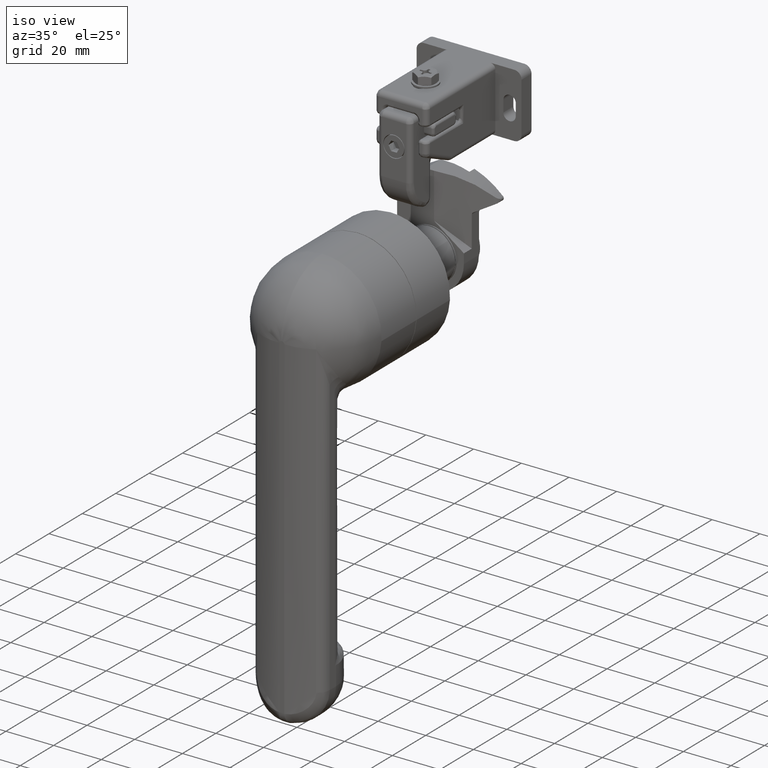
[diagram: clean part render]
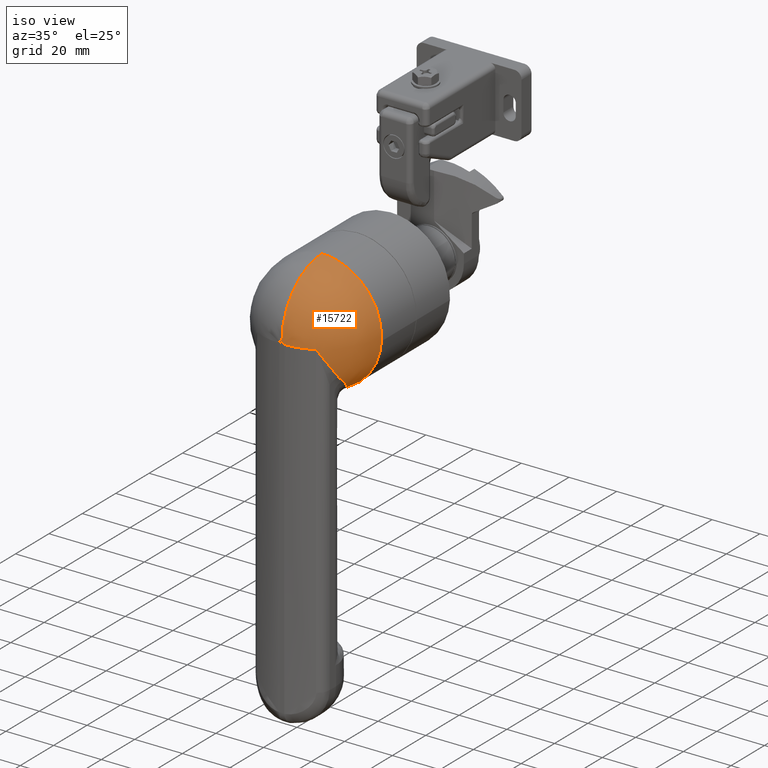
[diagram: same view with one face highlighted and labeled with its STEP entity id]
A machine part, iso view. The second image highlights one B-rep face of the part: STEP entity #15722.
In plain terms, the highlighted face is a freeform B-spline surface patch.
Its self-contained STEP definition (entity closure, byte-faithful):
#13758=CARTESIAN_POINT('',(12.368421052659739,-86.136674354177700,0.0));
#13759=VERTEX_POINT('',#13758);
#14684=CARTESIAN_POINT('',(16.691412799020451,-78.848165956074013,-12.075948117318720));
#14685=VERTEX_POINT('',#14684);
#14686=CARTESIAN_POINT('',(12.368421052659739,-86.136674354177700,0.0));
#14687=CARTESIAN_POINT('',(12.387903603202259,-86.126195608371319,-0.032028102477269));
#14688=CARTESIAN_POINT('',(12.407615682408119,-86.115490653580693,-0.064501577772685));
#14689=CARTESIAN_POINT('',(12.446859998097549,-86.093968124939153,-0.129283595502242));
#14690=CARTESIAN_POINT('',(12.505580352903520,-86.061450952670626,-0.226415839607069));
#14691=CARTESIAN_POINT('',(12.641565911307380,-85.983949842044169,-0.452778047456445));
#14692=CARTESIAN_POINT('',(12.756341729171501,-85.914750062908013,-0.646343067762968));
#14693=CARTESIAN_POINT('',(12.983460402625081,-85.772707933445346,-1.032912685323779));
#14694=CARTESIAN_POINT('',(13.131629731309189,-85.673157302148169,-1.289878549229909));
#14695=CARTESIAN_POINT('',(13.565935931567870,-85.360313980973586,-2.058953912359514));
#14696=CARTESIAN_POINT('',(13.841886134225501,-85.132843585568210,-2.569240320859385));
#14697=CARTESIAN_POINT('',(14.363755270688920,-84.641757972048978,-3.587194166868598));
#14698=CARTESIAN_POINT('',(14.609679906107649,-84.378142757967950,-4.094858758040878));
#14699=CARTESIAN_POINT('',(15.068095789755329,-83.815998628434002,-5.109868734369498));
#14700=CARTESIAN_POINT('',(15.280597077244940,-83.517470368280485,-5.617209423776683));
#14701=CARTESIAN_POINT('',(15.571135873087741,-83.044079668509156,-6.379834882521839));
#14702=CARTESIAN_POINT('',(15.663355454554360,-82.881799540438820,-6.634616730930951));
#14703=CARTESIAN_POINT('',(15.836360627809890,-82.551621897035531,-7.140761346578716));
#14704=CARTESIAN_POINT('',(15.917346211883530,-82.383429218786759,-7.392616066442840));
#14705=CARTESIAN_POINT('',(16.143315490370490,-81.870059262111596,-8.144995791472377));
#14706=CARTESIAN_POINT('',(16.271344774024350,-81.516100120233531,-8.642337355183784));
#14707=CARTESIAN_POINT('',(16.479148108147221,-80.787241473676445,-9.630951633321672));
#14708=CARTESIAN_POINT('',(16.558937112682241,-80.412337757744069,-10.122218332320800));
#14709=CARTESIAN_POINT('',(16.666027413815680,-79.643793726513081,-11.101132095573680));
#14710=CARTESIAN_POINT('',(16.693354633436400,-79.250148824724235,-11.588770734553650));
#14711=CARTESIAN_POINT('',(16.691412799020451,-78.848165956074013,-12.075948117318720));
#14712=B_SPLINE_CURVE_WITH_KNOTS('',3,(#14686,#14687,#14688,#14689,#14690,#14691,#14692,#14693,#14694,#14695,#14696,#14697,#14698,#14699,#14700,#14701,#14702,#14703,#14704,#14705,#14706,#14707,#14708,#14709,#14710,#14711),.UNSPECIFIED.,.F.,.U.,(4,2,1,1,2,2,2,2,2,2,2,2,2,4),(0.0,0.007812500000000,0.015625000000001,0.031250000000000,0.062500000000000,0.125000000000000,0.249999999999999,0.374999999999999,0.499999999999998,0.562499999999998,0.624999999999998,0.749999999999999,0.874999999999999,1.0),.UNSPECIFIED.);
#14713=EDGE_CURVE('',#13759,#14685,#14712,.T.);
#14780=CARTESIAN_POINT('',(16.681870195211701,-76.436960092752187,-14.495188320257300));
#14781=VERTEX_POINT('',#14780);
#14795=CARTESIAN_POINT('',(16.691412799020451,-78.848165956074013,-12.075948117318720));
#14796=CARTESIAN_POINT('',(16.689654876300320,-78.484255000250187,-12.516984790384230));
#14797=CARTESIAN_POINT('',(16.687975704293152,-78.101319844358287,-12.939060753716740));
#14798=CARTESIAN_POINT('',(16.684791227888081,-77.297658286550174,-13.745547625570120));
#14799=CARTESIAN_POINT('',(16.683285689166940,-76.876933296368335,-14.129959940212659));
#14800=CARTESIAN_POINT('',(16.681870195211701,-76.436960092752187,-14.495188320257300));
#14801=B_SPLINE_CURVE_WITH_KNOTS('',3,(#14795,#14796,#14797,#14798,#14799,#14800),.UNSPECIFIED.,.F.,.U.,(4,2,4),(0.0,0.500000000000000,1.0),.UNSPECIFIED.);
#14802=EDGE_CURVE('',#14685,#14781,#14801,.T.);
#14897=CARTESIAN_POINT('',(13.891201962038741,-70.268496706545804,-20.077515458229449));
#14898=VERTEX_POINT('',#14897);
#14912=CARTESIAN_POINT('',(16.681870195211701,-76.436960092752187,-14.495188320257300));
#14913=CARTESIAN_POINT('',(16.680940050542080,-76.147846367747135,-14.735185975942709));
#14914=CARTESIAN_POINT('',(16.664864119065999,-75.861680810625998,-14.975064030838441));
#14915=CARTESIAN_POINT('',(16.603686744759049,-75.294809362467262,-15.454369499824480));
#14916=CARTESIAN_POINT('',(16.558577716885999,-75.014107312062919,-15.693799606082131));
#14917=CARTESIAN_POINT('',(16.439593807213001,-74.458132795741435,-16.172235046624461));
#14918=CARTESIAN_POINT('',(16.365717301658020,-74.182861573324047,-16.411241447677170));
#14919=CARTESIAN_POINT('',(16.232888742379050,-73.774244100542077,-16.769582237944459));
#14920=CARTESIAN_POINT('',(16.184937087529320,-73.638755574090212,-16.889002307089061));
#14921=CARTESIAN_POINT('',(16.081528936120112,-73.369278361659724,-17.127828584349210));
#14922=CARTESIAN_POINT('',(16.025950639607341,-73.235044182679331,-17.247457033335039));
#14923=CARTESIAN_POINT('',(15.849178269194050,-72.838004239209496,-17.603439341526990));
#14924=CARTESIAN_POINT('',(15.586250914382420,-72.322046371242280,-18.071782291091729));
#14925=CARTESIAN_POINT('',(15.269177928150150,-71.833660986139364,-18.528512208102651));
#14926=CARTESIAN_POINT('',(14.924479800790531,-71.359867320810110,-18.979867356006629));
#14927=CARTESIAN_POINT('',(14.738322389547340,-71.130263228832973,-19.202857434388051));
#14928=CARTESIAN_POINT('',(14.337050331257331,-70.686961914602833,-19.643845499280530));
#14929=CARTESIAN_POINT('',(14.121945803579051,-70.473257230296113,-19.861843232708789));
#14930=CARTESIAN_POINT('',(13.891201962038821,-70.268496706545903,-20.077515458229549));
#14931=B_SPLINE_CURVE_WITH_KNOTS('',3,(#14912,#14913,#14914,#14915,#14916,#14917,#14918,#14919,#14920,#14921,#14922,#14923,#14924,#14925,#14926,#14927,#14928,#14929,#14930),.UNSPECIFIED.,.F.,.U.,(4,2,2,2,2,2,1,2,2,4),(0.0,0.125000000000000,0.249999999999999,0.374999999999999,0.437499999999999,0.499999999999999,0.624999999999999,0.749999999999999,0.875000000000000,1.0),.UNSPECIFIED.);
#14932=EDGE_CURVE('',#14781,#14898,#14931,.T.);
#15137=CARTESIAN_POINT('',(-7.658180E-011,-65.000000002150387,-25.0));
#15138=VERTEX_POINT('',#15137);
#15172=CARTESIAN_POINT('',(13.891201962038741,-70.268496706545804,-20.077515458229449));
#15173=CARTESIAN_POINT('',(13.473308900113031,-69.897661230994231,-20.468112780754151));
#15174=CARTESIAN_POINT('',(13.033379724531009,-69.537252066895789,-20.836003148257561));
#15175=CARTESIAN_POINT('',(12.107666335349281,-68.842166822816878,-21.528662498569890));
#15176=CARTESIAN_POINT('',(11.621894726823960,-68.507474236616773,-21.853433685989231));
#15177=CARTESIAN_POINT('',(10.601700667370990,-67.868894163845638,-22.460809023336680));
#15178=CARTESIAN_POINT('',(10.067298881318770,-67.564985365376401,-22.743422668048769));
#15179=CARTESIAN_POINT('',(9.366198416520026,-67.208005356916175,-23.069995908433992));
#15180=CARTESIAN_POINT('',(9.224254921929891,-67.137734548096347,-23.133991527656050));
#15181=CARTESIAN_POINT('',(8.938867395535315,-67.000480719685044,-23.258478732769870));
#15182=CARTESIAN_POINT('',(8.795198360858750,-66.933380315041674,-23.319078092359710));
#15183=CARTESIAN_POINT('',(8.361268615736771,-66.736711387396696,-23.496014467389610));
#15184=CARTESIAN_POINT('',(8.068087038057310,-66.611773337292263,-23.607493865426420));
#15185=CARTESIAN_POINT('',(7.176819969839356,-66.255964059035378,-23.922916353716680));
#15186=CARTESIAN_POINT('',(6.567044537094632,-66.044057334151589,-24.107910106947081));
#15187=CARTESIAN_POINT('',(5.315378890244698,-65.674223158968360,-24.427978324983059));
#15188=CARTESIAN_POINT('',(4.673499262472759,-65.516274094321901,-24.563064898398910));
#15189=CARTESIAN_POINT('',(3.849786458951302,-65.355631564247062,-24.699723941479451));
#15190=CARTESIAN_POINT('',(3.683755004510748,-65.325311037697958,-24.725470533321751));
#15191=CARTESIAN_POINT('',(3.350489570380262,-65.268623067643091,-24.773539019767661));
#15192=CARTESIAN_POINT('',(3.183733348437810,-65.242331129672863,-24.795797073270339));
#15193=CARTESIAN_POINT('',(2.683098078806497,-65.169567761011990,-24.857324085438218));
#15194=CARTESIAN_POINT('',(2.348852709906225,-65.129205197462738,-24.891351281492572));
#15195=CARTESIAN_POINT('',(1.344671815115887,-65.032338774696939,-24.972910068831439));
#15196=CARTESIAN_POINT('',(0.673295837673134,-65.000000002055117,-24.999999999996671));
#15197=CARTESIAN_POINT('',(-7.658180E-011,-65.000000002150387,-25.0));
#15198=B_SPLINE_CURVE_WITH_KNOTS('',3,(#15172,#15173,#15174,#15175,#15176,#15177,#15178,#15179,#15180,#15181,#15182,#15183,#15184,#15185,#15186,#15187,#15188,#15189,#15190,#15191,#15192,#15193,#15194,#15195,#15196,#15197),.UNSPECIFIED.,.F.,.U.,(4,2,2,2,2,2,2,2,2,2,2,2,4),(0.0,0.125000000000000,0.250000000000000,0.375000000000000,0.406249999999999,0.437499999999999,0.499999999999999,0.624999999999999,0.749999999999999,0.781249999999999,0.812499999999999,0.874999999999999,1.0),.UNSPECIFIED.);
#15199=EDGE_CURVE('',#14898,#15138,#15198,.T.);
#15560=CARTESIAN_POINT('',(0.999999999861416,-88.999999999648395,0.0));
#15561=VERTEX_POINT('',#15560);
#15569=CARTESIAN_POINT('',(12.368421052659739,-86.136674354177700,0.0));
#15570=CARTESIAN_POINT('',(7.044798584797757,-88.999999999650029,0.0));
#15571=CARTESIAN_POINT('',(0.999999999861416,-88.999999999648395,0.0));
#15579=(BOUNDED_CURVE()B_SPLINE_CURVE(2,(#15569,#15570,#15571),.UNSPECIFIED.,.F.,.U.)CURVE()GEOMETRIC_REPRESENTATION_ITEM()QUASI_UNIFORM_CURVE()RATIONAL_B_SPLINE_CURVE((1.0,0.969715103721686,1.0))REPRESENTATION_ITEM(''));
#15580=EDGE_CURVE('',#13759,#15561,#15579,.T.);
#15593=CARTESIAN_POINT('',(-1.384705E-010,-88.999999999648338,1.000000000084599));
#15594=VERTEX_POINT('',#15593);
#15595=CARTESIAN_POINT('',(0.999999999861416,-88.999999999648395,0.0));
#15596=CARTESIAN_POINT('',(0.999999999861416,-88.999999999648381,1.000000000042242));
#15597=CARTESIAN_POINT('',(-1.384705E-010,-88.999999999648338,1.000000000084599));
#15605=(BOUNDED_CURVE()B_SPLINE_CURVE(2,(#15595,#15596,#15597),.UNSPECIFIED.,.F.,.U.)B_SPLINE_CURVE_WITH_KNOTS((3,3),(0.0,0.500000000000000),.UNSPECIFIED.)CURVE()GEOMETRIC_REPRESENTATION_ITEM()RATIONAL_B_SPLINE_CURVE((1.0,0.707106781186548,1.0))REPRESENTATION_ITEM(''));
#15606=EDGE_CURVE('',#15561,#15594,#15605,.T.);
#15624=CARTESIAN_POINT('',(-1.384705E-010,-88.979157616211864,3.120636E-015));
#15625=CARTESIAN_POINT('',(-0.399562752017746,-89.575182760580660,-14.292180880253696));
#15626=CARTESIAN_POINT('',(-0.604309887194663,-77.287591380114435,-21.615894306740444));
#15627=CARTESIAN_POINT('',(-0.713925250270766,-70.709190225261850,-25.536786804777137));
#15628=CARTESIAN_POINT('',(-0.696758036826784,-63.075600918887687,-24.922723260071542));
#15629=CARTESIAN_POINT('',(-1.384705E-010,-88.979157616211921,3.078448E-015));
#15630=CARTESIAN_POINT('',(-0.200944852794357,-89.575182760580660,-14.292180880253699));
#15631=CARTESIAN_POINT('',(-0.303914618410225,-77.287591380114492,-21.615894306740454));
#15632=CARTESIAN_POINT('',(-0.359041486163914,-70.709190225261850,-25.536786804777126));
#15633=CARTESIAN_POINT('',(-0.350407890665364,-63.075600918887673,-24.922723260071535));
#15634=CARTESIAN_POINT('',(-1.384736E-010,-88.979157616211893,0.0));
#15635=CARTESIAN_POINT('',(14.292180880115222,-89.575182760580645,-14.292180880253692));
#15636=CARTESIAN_POINT('',(21.615894306601970,-77.287591380114478,-21.615894306740454));
#15637=CARTESIAN_POINT('',(25.536786804638659,-70.709190225261864,-25.536786804777140));
#15638=CARTESIAN_POINT('',(24.922723259933061,-63.075600918887694,-24.922723260071535));
#15639=CARTESIAN_POINT('',(-1.384736E-010,-88.979157616211893,0.0));
#15640=CARTESIAN_POINT('',(14.292180880115227,-89.575182760580660,0.0));
#15641=CARTESIAN_POINT('',(21.615894306601980,-77.287591380114478,0.0));
#15642=CARTESIAN_POINT('',(25.536786804638663,-70.709190225261850,0.0));
#15643=CARTESIAN_POINT('',(24.922723259933065,-63.075600918887680,0.0));
#15644=CARTESIAN_POINT('',(-1.384706E-010,-88.979157616211893,-3.035766E-015));
#15645=CARTESIAN_POINT('',(14.292180880115222,-89.575182760580645,14.292180880253692));
#15646=CARTESIAN_POINT('',(21.615894306601970,-77.287591380114478,21.615894306740454));
#15647=CARTESIAN_POINT('',(25.536786804638659,-70.709190225261864,25.536786804777140));
#15648=CARTESIAN_POINT('',(24.922723259933061,-63.075600918887694,24.922723260071535));
#15649=CARTESIAN_POINT('',(-1.384706E-010,-88.979157616211879,-3.035766E-015));
#15650=CARTESIAN_POINT('',(-0.200944852829325,-89.575182760580674,14.292180880253690));
#15651=CARTESIAN_POINT('',(-0.303914618463111,-77.287591380114463,21.615894306740444));
#15652=CARTESIAN_POINT('',(-0.359041486226394,-70.709190225261850,25.536786804777126));
#15653=CARTESIAN_POINT('',(-0.350407890726342,-63.075600918887687,24.922723260071546));
#15654=CARTESIAN_POINT('',(-1.384706E-010,-88.979157616211936,-3.035766E-015));
#15655=CARTESIAN_POINT('',(-0.399562752086875,-89.575182760580660,14.292180880253689));
#15656=CARTESIAN_POINT('',(-0.604309887299215,-77.287591380114492,21.615894306740454));
#15657=CARTESIAN_POINT('',(-0.713925250394282,-70.709190225261850,25.536786804777126));
#15658=CARTESIAN_POINT('',(-0.696758036947331,-63.075600918887680,24.922723260071542));
#15666=(BOUNDED_SURFACE()B_SPLINE_SURFACE(2,2,((#15624,#15629,#15634,#15639,#15644,#15649,#15654),(#15625,#15630,#15635,#15640,#15645,#15650,#15655),(#15626,#15631,#15636,#15641,#15646,#15651,#15656),(#15627,#15632,#15637,#15642,#15647,#15652,#15657),(#15628,#15633,#15638,#15643,#15648,#15653,#15658)),.UNSPECIFIED.,.F.,.F.,.U.)B_SPLINE_SURFACE_WITH_KNOTS((3,2,3),(3,1,2,1,3),(0.0,0.333333333333333,0.524301061420515),(0.495000000000438,0.500000000000000,0.750000000000000,1.0,1.005000000000438),.UNSPECIFIED.)GEOMETRIC_REPRESENTATION_ITEM()RATIONAL_B_SPLINE_SURFACE(((1.011715728751513,1.005857864375756,0.707106781186548,1.0,0.707106781186548,1.005857864376782,1.011715728753563),(0.869059355517003,0.864027475815594,0.607401611021721,0.858995596114185,0.607401611021721,0.864027475816475,0.869059355518765),(1.011715728751513,1.005857864375756,0.707106781186548,1.0,0.707106781186548,1.005857864376782,1.011715728753563),(0.929987438270259,0.924602783144587,0.649985371711779,0.919218128018916,0.649985371711779,0.924602783145530,0.929987438272144),(0.941903943510930,0.936450291462953,0.658314036992216,0.930996639414975,0.658314036992216,0.936450291463907,0.941903943512840)))REPRESENTATION_ITEM('')SURFACE());
#15667=CARTESIAN_POINT('',(24.953370912101740,-65.000000000970530,-1.526197928129515));
#15668=VERTEX_POINT('',#15667);
#15669=CARTESIAN_POINT('',(-7.658180E-011,-65.000000002150387,-25.0));
#15670=CARTESIAN_POINT('',(23.517666364822816,-65.000000002150301,-24.999999999883475));
#15671=CARTESIAN_POINT('',(24.953370912101740,-65.000000000970530,-1.526197928129515));
#15679=(BOUNDED_CURVE()B_SPLINE_CURVE(2,(#15669,#15670,#15671),.UNSPECIFIED.,.F.,.U.)B_SPLINE_CURVE_WITH_KNOTS((3,3),(0.0,0.239333069836602),.UNSPECIFIED.)CURVE()GEOMETRIC_REPRESENTATION_ITEM()RATIONAL_B_SPLINE_CURVE((1.0,0.719603867228211,0.976072272269092))REPRESENTATION_ITEM(''));
#15680=EDGE_CURVE('',#15138,#15668,#15679,.T.);
#15681=ORIENTED_EDGE('',*,*,#15680,.T.);
#15682=CARTESIAN_POINT('',(-2.003511E-010,-64.999999999637524,25.0));
#15683=VERTEX_POINT('',#15682);
#15684=CARTESIAN_POINT('',(24.953370912101740,-65.000000000970530,-1.526197928129515));
#15685=CARTESIAN_POINT('',(24.999999999860492,-65.000000000932204,-0.763811280467377));
#15686=CARTESIAN_POINT('',(24.999999999858641,-65.000000000893820,1.239393E-010));
#15687=CARTESIAN_POINT('',(24.999999999798248,-64.999999999637438,25.000000000123858));
#15688=CARTESIAN_POINT('',(-2.003511E-010,-64.999999999637524,25.0));
#15696=(BOUNDED_CURVE()B_SPLINE_CURVE(2,(#15684,#15685,#15686,#15687,#15688),.UNSPECIFIED.,.F.,.U.)B_SPLINE_CURVE_WITH_KNOTS((3,2,3),(0.239333069836602,0.250000000000000,0.500000000000000),.UNSPECIFIED.)CURVE()GEOMETRIC_REPRESENTATION_ITEM()RATIONAL_B_SPLINE_CURVE((0.976072272269092,0.987502913958337,1.0,0.707106781186548,1.0))REPRESENTATION_ITEM(''));
#15697=EDGE_CURVE('',#15668,#15683,#15696,.T.);
#15698=ORIENTED_EDGE('',*,*,#15697,.T.);
#15699=CARTESIAN_POINT('',(-1.384705E-010,-88.999999999648338,1.000000000084599));
#15700=CARTESIAN_POINT('',(-1.560478E-010,-88.999999999600277,14.635004268405483));
#15701=CARTESIAN_POINT('',(-1.801478E-010,-77.287591380114492,21.615894306740451));
#15702=CARTESIAN_POINT('',(-1.918299E-010,-71.609801231098970,25.000000000002970));
#15703=CARTESIAN_POINT('',(-2.003511E-010,-64.999999999637524,25.000000000000004));
#15711=(BOUNDED_CURVE()B_SPLINE_CURVE(2,(#15699,#15700,#15701,#15702,#15703),.UNSPECIFIED.,.F.,.U.)B_SPLINE_CURVE_WITH_KNOTS((3,2,3),(0.013492263444396,0.333333333333333,0.500000000000136),.UNSPECIFIED.)CURVE()GEOMETRIC_REPRESENTATION_ITEM()RATIONAL_B_SPLINE_CURVE((0.989047223542810,0.864703001806328,1.0,0.929497798057035,0.929497798057093))REPRESENTATION_ITEM(''));
#15712=EDGE_CURVE('',#15594,#15683,#15711,.T.);
#15713=ORIENTED_EDGE('',*,*,#15712,.F.);
#15714=ORIENTED_EDGE('',*,*,#15606,.F.);
#15715=ORIENTED_EDGE('',*,*,#15580,.F.);
#15716=ORIENTED_EDGE('',*,*,#14713,.T.);
#15717=ORIENTED_EDGE('',*,*,#14802,.T.);
#15718=ORIENTED_EDGE('',*,*,#14932,.T.);
#15719=ORIENTED_EDGE('',*,*,#15199,.T.);
#15720=EDGE_LOOP('',(#15681,#15698,#15713,#15714,#15715,#15716,#15717,#15718,#15719));
#15721=FACE_OUTER_BOUND('',#15720,.T.);
#15722=ADVANCED_FACE('',(#15721),#15666,.T.);